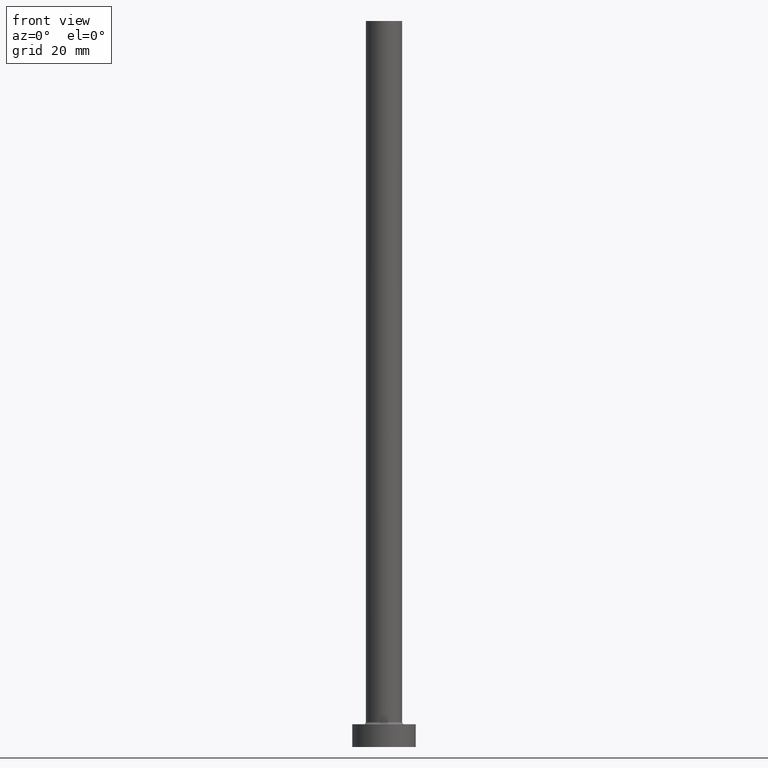
[diagram: clean part render]
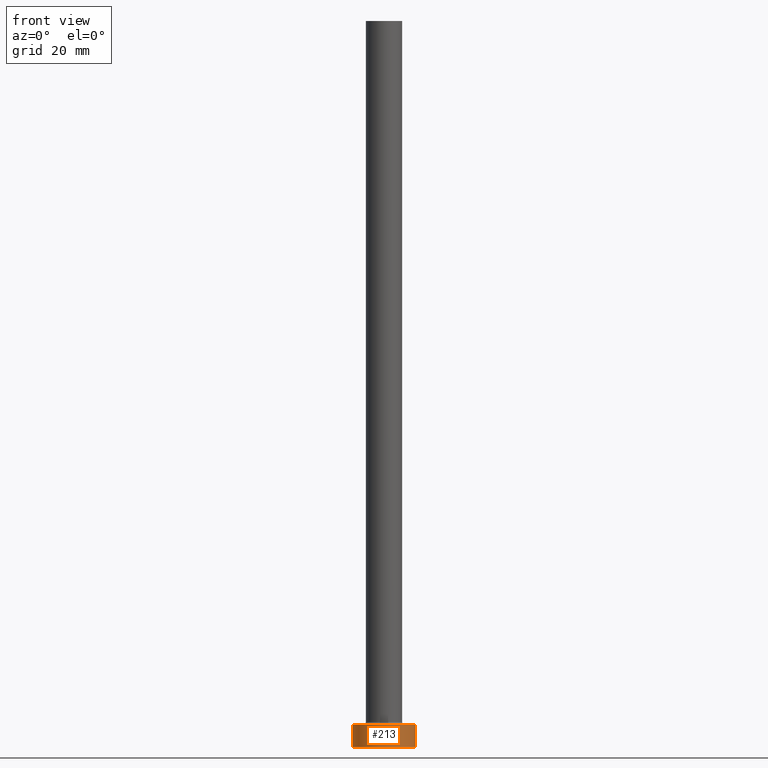
[diagram: same view with one face highlighted and labeled with its STEP entity id]
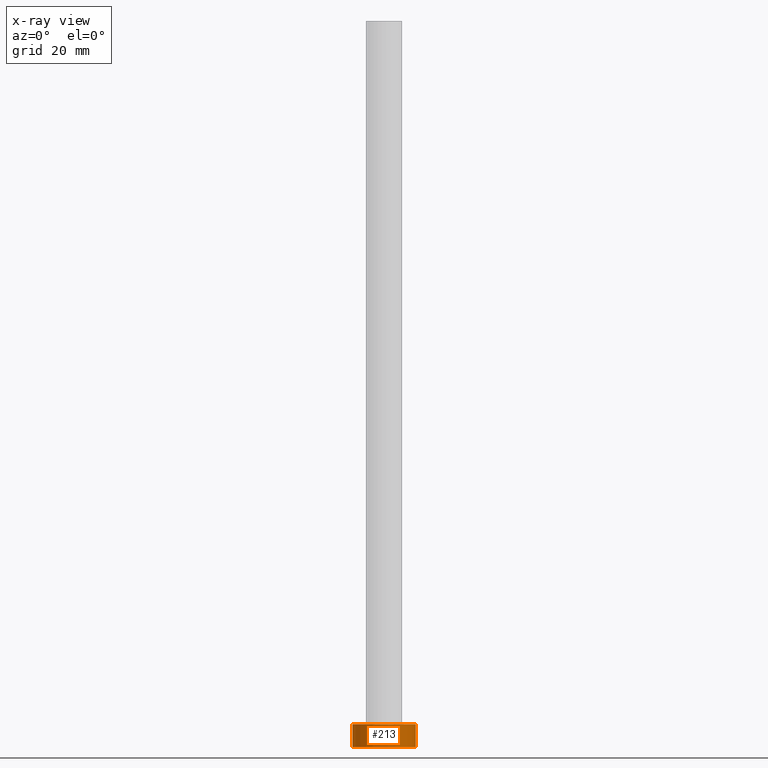
[diagram: x-ray of the same camera — body ghosted, the highlighted face saturated]
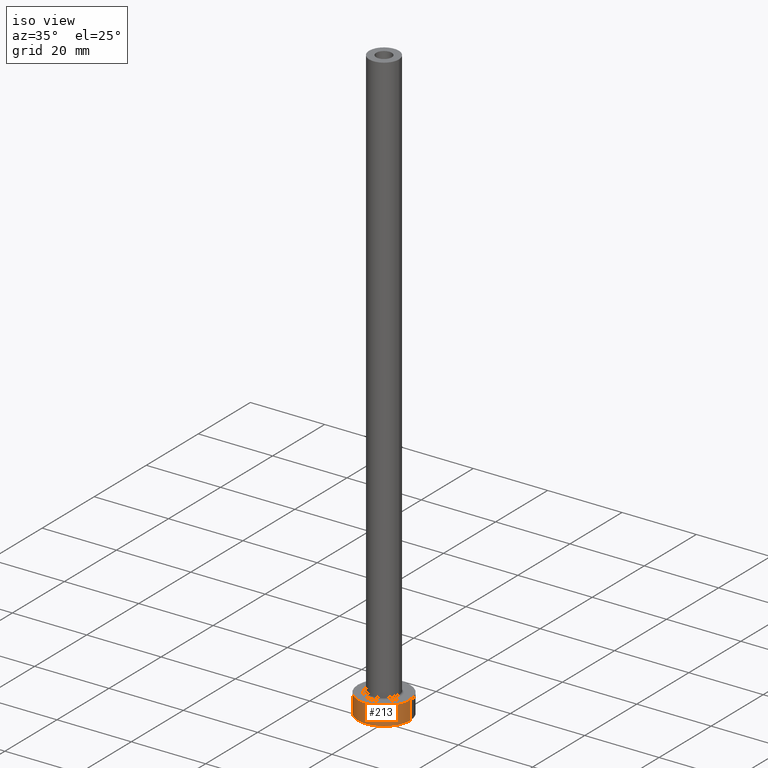
[diagram: same view with one face highlighted and labeled with its STEP entity id]
A machine part, front view. The second image highlights one B-rep face of the part: STEP entity #213.
The next image is the same camera in x-ray: the body ghosted, the highlighted face saturated — about 0% of this face is hidden behind the body in this view.
A second angle (iso view) of the same face is appended — the face is thin or edge-on in the first view.
In plain terms, the highlighted cylindrical surface (edge-blend (fillet) strip) has radius 7 mm, axis along (-0, -0, -1).
Its self-contained STEP definition (entity closure, byte-faithful):
#3 = CARTESIAN_POINT ( 'NONE',  ( 0.000000000000000000, 0.000000000000000000, 5.000000000000000000 ) ) ;
#31 = CARTESIAN_POINT ( 'NONE',  ( 0.000000000000000000, 0.000000000000000000, 5.000000000000000000 ) ) ;
#42 = LINE ( 'NONE', #149, #195 ) ;
#49 = AXIS2_PLACEMENT_3D ( 'NONE', #3, #215, #396 ) ;
#63 = DIRECTION ( 'NONE',  ( 1.000000000000000000, 0.000000000000000000, 0.000000000000000000 ) ) ;
#65 = CARTESIAN_POINT ( 'NONE',  ( 0.000000000000000000, 0.000000000000000000, 0.000000000000000000 ) ) ;
#81 = VERTEX_POINT ( 'NONE', #89 ) ;
#89 = CARTESIAN_POINT ( 'NONE',  ( -7.000000000000000000, 0.000000000000000000, 5.000000000000000000 ) ) ;
#115 = VERTEX_POINT ( 'NONE', #460 ) ;
#129 = EDGE_CURVE ( 'NONE', #81, #418, #284, .T. ) ;
#132 = DIRECTION ( 'NONE',  ( -0.000000000000000000, -0.000000000000000000, -1.000000000000000000 ) ) ;
#137 = ORIENTED_EDGE ( 'NONE', *, *, #362, .T. ) ;
#149 = CARTESIAN_POINT ( 'NONE',  ( 7.000000000000000000, 8.572527594031473190E-16, 5.000000000000000000 ) ) ;
#162 = AXIS2_PLACEMENT_3D ( 'NONE', #65, #260, #63 ) ;
#169 = LINE ( 'NONE', #214, #305 ) ;
#186 = EDGE_LOOP ( 'NONE', ( #224, #419, #291, #137 ) ) ;
#195 = VECTOR ( 'NONE', #254, 1000.000000000000000 ) ;
#213 = ADVANCED_FACE ( 'NONE', ( #218 ), #250, .T. ) ;
#214 = CARTESIAN_POINT ( 'NONE',  ( -7.000000000000000000, 0.000000000000000000, 5.000000000000000000 ) ) ;
#215 = DIRECTION ( 'NONE',  ( 0.000000000000000000, 0.000000000000000000, 1.000000000000000000 ) ) ;
#218 = FACE_OUTER_BOUND ( 'NONE', #186, .T. ) ;
#224 = ORIENTED_EDGE ( 'NONE', *, *, #234, .F. ) ;
#227 = CARTESIAN_POINT ( 'NONE',  ( 7.000000000000000000, 8.572527594031473190E-16, 5.000000000000000000 ) ) ;
#230 = EDGE_CURVE ( 'NONE', #81, #329, #169, .T. ) ;
#234 = EDGE_CURVE ( 'NONE', #418, #115, #42, .T. ) ;
#250 = CYLINDRICAL_SURFACE ( 'NONE', #432, 7.000000000000000000 ) ;
#254 = DIRECTION ( 'NONE',  ( -0.000000000000000000, -0.000000000000000000, -1.000000000000000000 ) ) ;
#260 = DIRECTION ( 'NONE',  ( 0.000000000000000000, 0.000000000000000000, 1.000000000000000000 ) ) ;
#284 = CIRCLE ( 'NONE', #49, 7.000000000000000000 ) ;
#286 = DIRECTION ( 'NONE',  ( -1.000000000000000000, 0.000000000000000000, 0.000000000000000000 ) ) ;
#291 = ORIENTED_EDGE ( 'NONE', *, *, #230, .T. ) ;
#305 = VECTOR ( 'NONE', #399, 1000.000000000000000 ) ;
#322 = CIRCLE ( 'NONE', #162, 7.000000000000000000 ) ;
#329 = VERTEX_POINT ( 'NONE', #455 ) ;
#362 = EDGE_CURVE ( 'NONE', #329, #115, #322, .T. ) ;
#396 = DIRECTION ( 'NONE',  ( 1.000000000000000000, 0.000000000000000000, 0.000000000000000000 ) ) ;
#399 = DIRECTION ( 'NONE',  ( -0.000000000000000000, -0.000000000000000000, -1.000000000000000000 ) ) ;
#418 = VERTEX_POINT ( 'NONE', #227 ) ;
#419 = ORIENTED_EDGE ( 'NONE', *, *, #129, .F. ) ;
#432 = AXIS2_PLACEMENT_3D ( 'NONE', #31, #132, #286 ) ;
#455 = CARTESIAN_POINT ( 'NONE',  ( -7.000000000000000000, 0.000000000000000000, 0.000000000000000000 ) ) ;
#460 = CARTESIAN_POINT ( 'NONE',  ( 7.000000000000000000, 8.572527594031473190E-16, 0.000000000000000000 ) ) ;